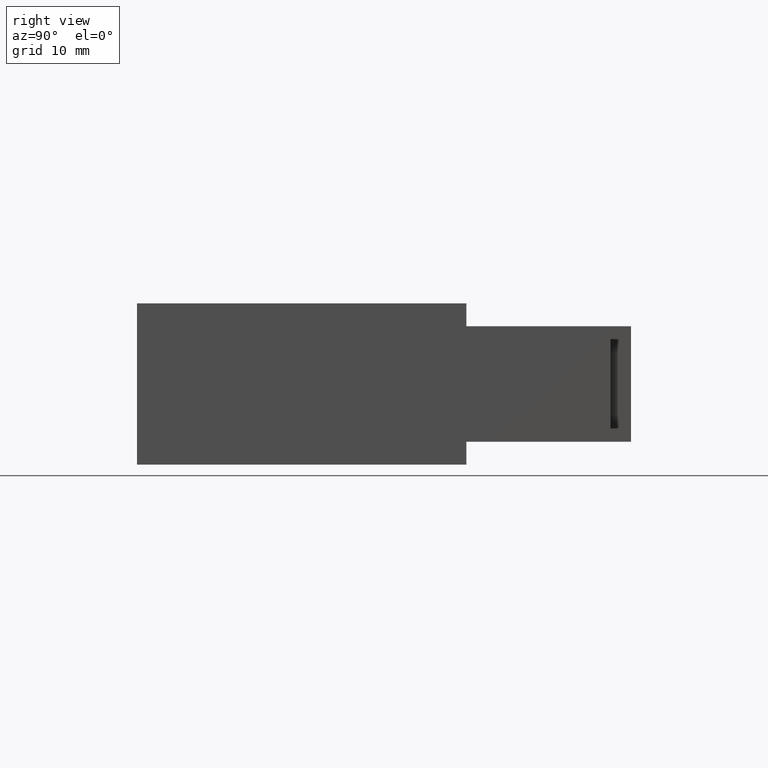
[diagram: clean part render]
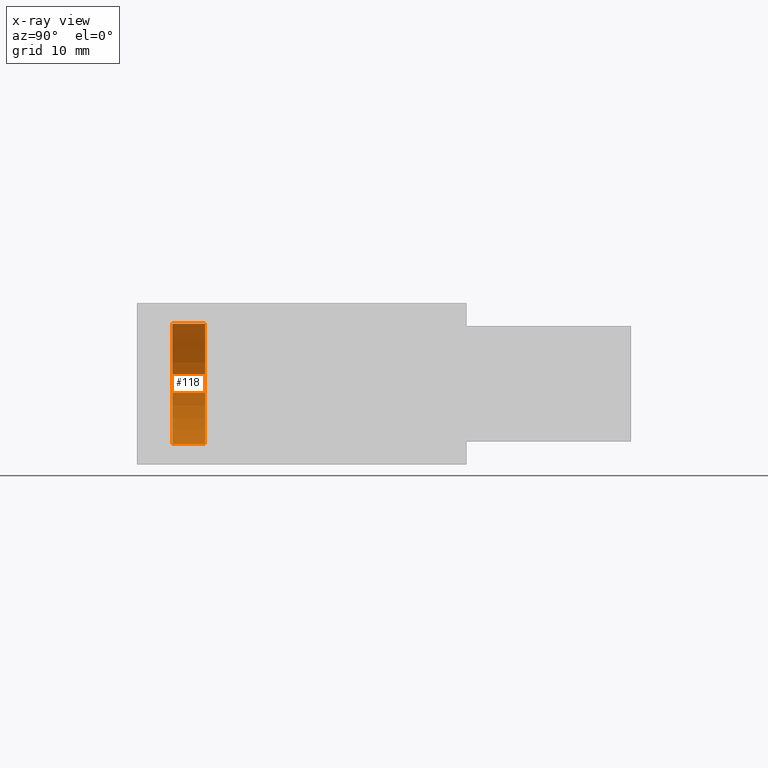
[diagram: x-ray — body ghosted, one internal face saturated and labeled with its STEP entity id]
A machine part, right view, then the same camera in x-ray: the body is ghosted and one INTERNAL B-rep face — a face not visible from any outside direction — is saturated and labeled: STEP entity #118.
In plain terms, the highlighted cylindrical surface (partial cylindrical patch) has radius 5.969 mm, axis along (-0, 1, 0).
Its self-contained STEP definition (entity closure, byte-faithful):
#85 = ORIENTED_EDGE ( 'NONE', *, *, #86, .F. ) ;
#86 = EDGE_CURVE ( 'NONE', #87, #88, #698, .T. ) ;
#87 = VERTEX_POINT ( 'NONE', #693 ) ;
#88 = VERTEX_POINT ( 'NONE', #692 ) ;
#89 = ORIENTED_EDGE ( 'NONE', *, *, #90, .T. ) ;
#90 = EDGE_CURVE ( 'NONE', #87, #91, #691, .T. ) ;
#91 = VERTEX_POINT ( 'NONE', #908 ) ;
#92 = ORIENTED_EDGE ( 'NONE', *, *, #93, .T. ) ;
#93 = EDGE_CURVE ( 'NONE', #91, #94, #907, .T. ) ;
#94 = VERTEX_POINT ( 'NONE', #902 ) ;
#95 = ORIENTED_EDGE ( 'NONE', *, *, #96, .F. ) ;
#96 = EDGE_CURVE ( 'NONE', #88, #94, #901, .T. ) ;
#118 = ADVANCED_FACE ( 'NONE', ( #785 ), #784, .F. ) ;
#119 = EDGE_LOOP ( 'NONE', ( #85, #89, #92, #95 ) ) ;
#690 = CARTESIAN_POINT ( 'NONE',  ( 2.877919977996281100E-017, 2.393751173250936600E-017, 0.07999999999999990500 ) ) ;
#691 = LINE ( 'NONE', #690, #910 ) ;
#692 = CARTESIAN_POINT ( 'NONE',  ( 0.0000000000000000000, -0.8269685039370076000, 0.5500000000000000400 ) ) ;
#693 = CARTESIAN_POINT ( 'NONE',  ( 2.877919977996281100E-017, -0.8269685039370076000, 0.07999999999999983500 ) ) ;
#694 = DIRECTION ( 'NONE',  ( 0.0000000000000000000, 0.0000000000000000000, 1.000000000000000000 ) ) ;
#695 = DIRECTION ( 'NONE',  ( -0.0000000000000000000, 1.000000000000000000, 1.018617520532313100E-016 ) ) ;
#696 = CARTESIAN_POINT ( 'NONE',  ( 0.0000000000000000000, -0.8269685039370076000, 0.3149999999999998900 ) ) ;
#697 = AXIS2_PLACEMENT_3D ( 'NONE', #696, #695, #694 ) ;
#698 = CIRCLE ( 'NONE', #697, 0.2350000000000001000 ) ;
#784 = CYLINDRICAL_SURFACE ( 'NONE', #833, 0.2350000000000001000 ) ;
#785 = FACE_OUTER_BOUND ( 'NONE', #119, .T. ) ;
#830 = DIRECTION ( 'NONE',  ( 0.0000000000000000000, -1.018617520532313000E-016, 1.000000000000000000 ) ) ;
#831 = DIRECTION ( 'NONE',  ( -0.0000000000000000000, 1.000000000000000000, 1.018617520532313100E-016 ) ) ;
#832 = CARTESIAN_POINT ( 'NONE',  ( 0.0000000000000000000, 0.0000000000000000000, 0.3150000000000000000 ) ) ;
#833 = AXIS2_PLACEMENT_3D ( 'NONE', #832, #831, #830 ) ;
#898 = DIRECTION ( 'NONE',  ( -0.0000000000000000000, 1.000000000000000000, 1.018617520532313100E-016 ) ) ;
#899 = VECTOR ( 'NONE', #898, 39.37007874015748100 ) ;
#900 = CARTESIAN_POINT ( 'NONE',  ( 0.0000000000000000000, -2.393751173250936600E-017, 0.5500000000000000400 ) ) ;
#901 = LINE ( 'NONE', #900, #899 ) ;
#902 = CARTESIAN_POINT ( 'NONE',  ( 0.0000000000000000000, -0.6989370078740153600, 0.5500000000000000400 ) ) ;
#903 = DIRECTION ( 'NONE',  ( 0.0000000000000000000, 0.0000000000000000000, 1.000000000000000000 ) ) ;
#904 = DIRECTION ( 'NONE',  ( -0.0000000000000000000, 1.000000000000000000, 1.018617520532313100E-016 ) ) ;
#905 = CARTESIAN_POINT ( 'NONE',  ( 0.0000000000000000000, -0.6989370078740153600, 0.3149999999999998900 ) ) ;
#906 = AXIS2_PLACEMENT_3D ( 'NONE', #905, #904, #903 ) ;
#907 = CIRCLE ( 'NONE', #906, 0.2350000000000001000 ) ;
#908 = CARTESIAN_POINT ( 'NONE',  ( 2.877919977996281100E-017, -0.6989370078740153600, 0.07999999999999983500 ) ) ;
#909 = DIRECTION ( 'NONE',  ( -0.0000000000000000000, 1.000000000000000000, 1.018617520532313100E-016 ) ) ;
#910 = VECTOR ( 'NONE', #909, 39.37007874015748100 ) ;